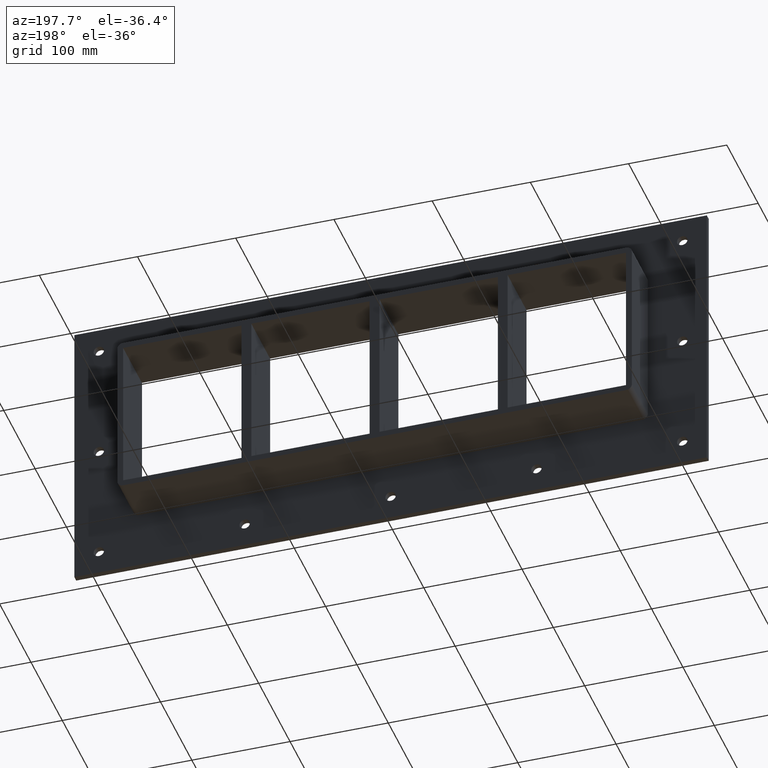
[diagram: clean part render]
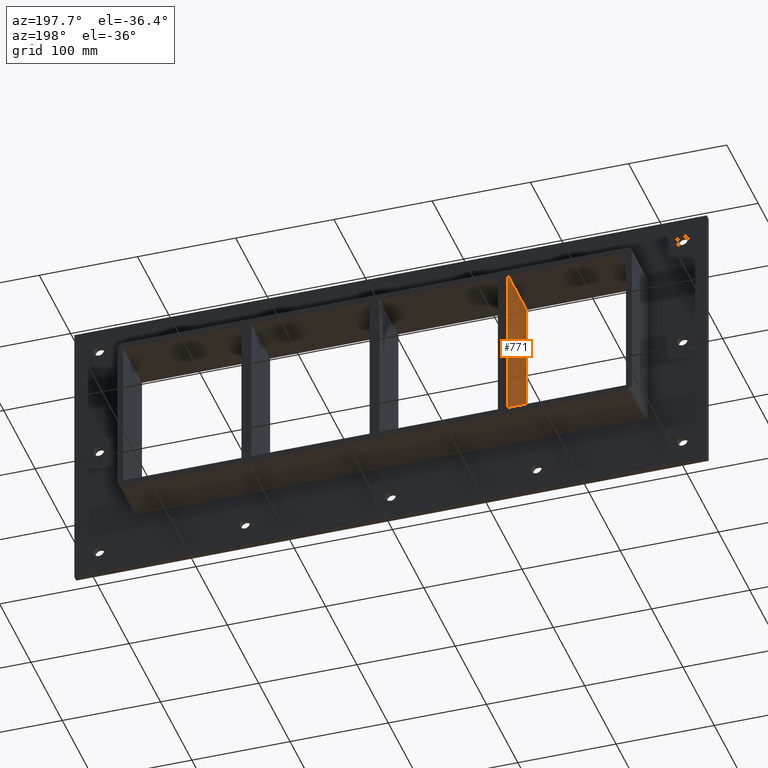
[diagram: same view with one face highlighted and labeled with its STEP entity id]
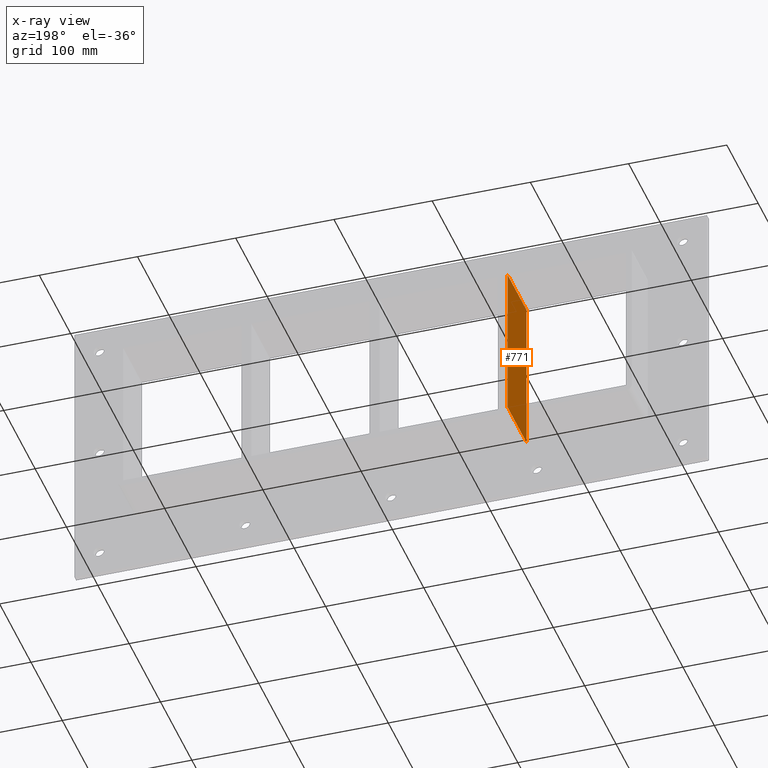
[diagram: x-ray of the same camera — body ghosted, the highlighted face saturated]
A machine part, auxiliary view. The second image highlights one B-rep face of the part: STEP entity #771.
The next image is the same camera in x-ray: the body ghosted, the highlighted face saturated — about 0% of this face is hidden behind the body in this view.
In plain terms, the highlighted planar face has unit normal (-1, 0, 0).
Its self-contained STEP definition (entity closure, byte-faithful):
#732=CARTESIAN_POINT('',(-135.50000000000207,-3.0,-79.750000000000014));
#733=DIRECTION('',(-1.0,0.0,0.0));
#734=DIRECTION('',(0.0,0.0,1.0));
#735=AXIS2_PLACEMENT_3D('',#732,#733,#734);
#736=PLANE('',#735);
#737=CARTESIAN_POINT('',(-135.50000000000207,-3.0,-79.750000000000014));
#738=VERTEX_POINT('',#737);
#739=CARTESIAN_POINT('',(-135.5000000000021,-3.0,79.750000000000014));
#740=VERTEX_POINT('',#739);
#741=CARTESIAN_POINT('',(-135.50000000000207,-3.0,-79.750000000000014));
#742=DIRECTION('',(0.0,0.0,1.0));
#743=VECTOR('',#742,159.50000000000003);
#744=LINE('',#741,#743);
#745=EDGE_CURVE('',#738,#740,#744,.T.);
#746=ORIENTED_EDGE('',*,*,#745,.T.);
#747=CARTESIAN_POINT('',(-135.5000000000021,57.0,79.750000000000014));
#748=VERTEX_POINT('',#747);
#749=CARTESIAN_POINT('',(-135.5000000000021,57.000000000000007,79.750000000000014));
#750=DIRECTION('',(0.0,-1.0,0.0));
#751=VECTOR('',#750,60.000000000000007);
#752=LINE('',#749,#751);
#753=EDGE_CURVE('',#748,#740,#752,.T.);
#754=ORIENTED_EDGE('',*,*,#753,.F.);
#755=CARTESIAN_POINT('',(-135.50000000000207,57.0,-79.750000000000014));
#756=VERTEX_POINT('',#755);
#757=CARTESIAN_POINT('',(-135.50000000000207,57.0,-79.750000000000014));
#758=DIRECTION('',(0.0,0.0,1.0));
#759=VECTOR('',#758,159.50000000000003);
#760=LINE('',#757,#759);
#761=EDGE_CURVE('',#756,#748,#760,.T.);
#762=ORIENTED_EDGE('',*,*,#761,.F.);
#763=CARTESIAN_POINT('',(-135.50000000000207,-3.0,-79.750000000000014));
#764=DIRECTION('',(0.0,1.0,0.0));
#765=VECTOR('',#764,60.000000000000007);
#766=LINE('',#763,#765);
#767=EDGE_CURVE('',#738,#756,#766,.T.);
#768=ORIENTED_EDGE('',*,*,#767,.F.);
#769=EDGE_LOOP('',(#746,#754,#762,#768));
#770=FACE_OUTER_BOUND('',#769,.T.);
#771=ADVANCED_FACE('',(#770),#736,.T.);